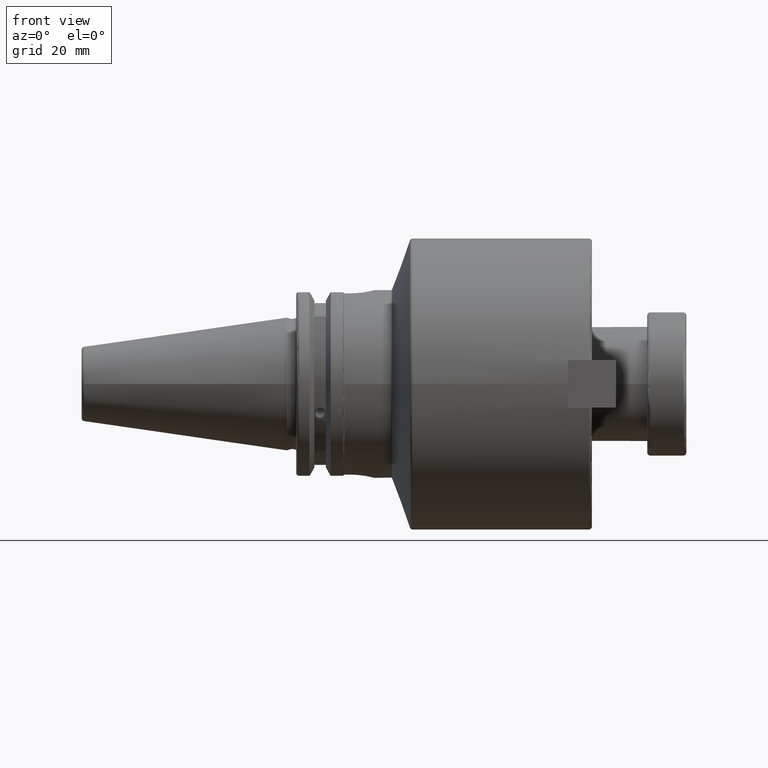
[diagram: clean part render]
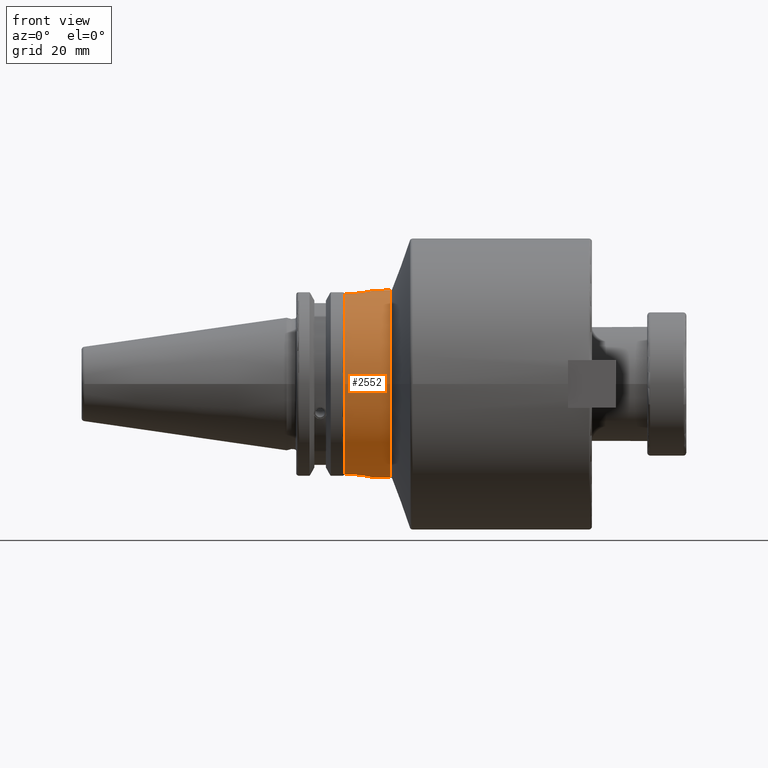
[diagram: same view with one face highlighted and labeled with its STEP entity id]
A machine part, front view. The second image highlights one B-rep face of the part: STEP entity #2552.
In plain terms, the highlighted cylindrical surface (bore or boss wall) has radius 31.25 mm, axis along (1, 0, 0).
Its self-contained STEP definition (entity closure, byte-faithful):
#121=CYLINDRICAL_SURFACE('',#2834,31.25);
#224=CIRCLE('',#2829,31.25);
#228=CIRCLE('',#2833,31.25);
#229=CIRCLE('',#2835,31.25);
#230=CIRCLE('',#2836,31.25);
#231=CIRCLE('',#2837,31.25);
#366=FACE_OUTER_BOUND('',#522,.T.);
#522=EDGE_LOOP('',(#1785,#1786,#1787,#1788,#1789,#1790,#1791,#1792,#1793,
#1794,#1795,#1796,#1797));
#699=LINE('',#4155,#862);
#700=LINE('',#4159,#863);
#701=LINE('',#4180,#864);
#702=LINE('',#4184,#865);
#703=LINE('',#4205,#866);
#862=VECTOR('',#3234,31.25);
#863=VECTOR('',#3237,10.);
#864=VECTOR('',#3238,10.);
#865=VECTOR('',#3241,10.);
#866=VECTOR('',#3242,10.);
#1009=B_SPLINE_CURVE_WITH_KNOTS('',3,(#4161,#4162,#4163,#4164,#4165,#4166,
#4167,#4168,#4169,#4170,#4171,#4172,#4173,#4174,#4175,#4176,#4177,#4178),
 .UNSPECIFIED.,.F.,.F.,(4,2,2,2,2,2,2,2,4),(-2.48058401696442,-2.1704846734033,
-1.86038532984218,-1.5503386691622,-1.24029200848221,-0.930245347802224,
-0.620198687122238,-0.310099343561118,0.),.UNSPECIFIED.);
#1010=B_SPLINE_CURVE_WITH_KNOTS('',3,(#4186,#4187,#4188,#4189,#4190,#4191,
#4192,#4193,#4194,#4195,#4196,#4197,#4198,#4199,#4200,#4201,#4202,#4203),
 .UNSPECIFIED.,.F.,.F.,(4,2,2,2,2,2,2,2,4),(-2.48058401696442,-2.1704846734033,
-1.86038532984219,-1.5503386691622,-1.24029200848221,-0.930245347802225,
-0.620198687122238,-0.310099343561118,0.),.UNSPECIFIED.);
#1079=VERTEX_POINT('',#4144);
#1080=VERTEX_POINT('',#4145);
#1083=VERTEX_POINT('',#4154);
#1084=VERTEX_POINT('',#4156);
#1085=VERTEX_POINT('',#4158);
#1086=VERTEX_POINT('',#4160);
#1087=VERTEX_POINT('',#4179);
#1088=VERTEX_POINT('',#4181);
#1089=VERTEX_POINT('',#4183);
#1090=VERTEX_POINT('',#4185);
#1091=VERTEX_POINT('',#4204);
#1352=EDGE_CURVE('',#1079,#1080,#224,.T.);
#1356=EDGE_CURVE('',#1080,#1079,#228,.T.);
#1357=EDGE_CURVE('',#1079,#1083,#699,.T.);
#1358=EDGE_CURVE('',#1084,#1083,#229,.T.);
#1359=EDGE_CURVE('',#1084,#1085,#700,.T.);
#1360=EDGE_CURVE('',#1085,#1086,#1009,.T.);
#1361=EDGE_CURVE('',#1086,#1087,#701,.T.);
#1362=EDGE_CURVE('',#1088,#1087,#230,.T.);
#1363=EDGE_CURVE('',#1088,#1089,#702,.T.);
#1364=EDGE_CURVE('',#1089,#1090,#1010,.T.);
#1365=EDGE_CURVE('',#1090,#1091,#703,.T.);
#1366=EDGE_CURVE('',#1083,#1091,#231,.T.);
#1785=ORIENTED_EDGE('',*,*,#1352,.F.);
#1786=ORIENTED_EDGE('',*,*,#1357,.T.);
#1787=ORIENTED_EDGE('',*,*,#1358,.F.);
#1788=ORIENTED_EDGE('',*,*,#1359,.T.);
#1789=ORIENTED_EDGE('',*,*,#1360,.T.);
#1790=ORIENTED_EDGE('',*,*,#1361,.T.);
#1791=ORIENTED_EDGE('',*,*,#1362,.F.);
#1792=ORIENTED_EDGE('',*,*,#1363,.T.);
#1793=ORIENTED_EDGE('',*,*,#1364,.T.);
#1794=ORIENTED_EDGE('',*,*,#1365,.T.);
#1795=ORIENTED_EDGE('',*,*,#1366,.F.);
#1796=ORIENTED_EDGE('',*,*,#1357,.F.);
#1797=ORIENTED_EDGE('',*,*,#1356,.F.);
#2552=ADVANCED_FACE('',(#366),#121,.T.);
#2829=AXIS2_PLACEMENT_3D('',#4146,#3222,#3223);
#2833=AXIS2_PLACEMENT_3D('',#4152,#3230,#3231);
#2834=AXIS2_PLACEMENT_3D('',#4153,#3232,#3233);
#2835=AXIS2_PLACEMENT_3D('',#4157,#3235,#3236);
#2836=AXIS2_PLACEMENT_3D('',#4182,#3239,#3240);
#2837=AXIS2_PLACEMENT_3D('',#4206,#3243,#3244);
#3222=DIRECTION('center_axis',(1.,0.,0.));
#3223=DIRECTION('ref_axis',(0.,-1.,1.83697019872103E-16));
#3230=DIRECTION('center_axis',(1.,0.,0.));
#3231=DIRECTION('ref_axis',(0.,-1.,1.83697019872103E-16));
#3232=DIRECTION('center_axis',(1.,0.,0.));
#3233=DIRECTION('ref_axis',(0.,1.,0.));
#3234=DIRECTION('',(-1.,0.,0.));
#3235=DIRECTION('center_axis',(-1.,0.,0.));
#3236=DIRECTION('ref_axis',(0.,-1.,4.9789962505148E-17));
#3237=DIRECTION('',(1.,0.,0.));
#3238=DIRECTION('',(-1.,0.,0.));
#3239=DIRECTION('center_axis',(-1.,0.,0.));
#3240=DIRECTION('ref_axis',(0.,1.,4.9789962505148E-17));
#3241=DIRECTION('',(1.,0.,0.));
#3242=DIRECTION('',(-1.,0.,0.));
#3243=DIRECTION('center_axis',(-1.,0.,0.));
#3244=DIRECTION('ref_axis',(0.,-1.,4.9789962505148E-17));
#4144=CARTESIAN_POINT('',(34.6498962308951,-31.25,-3.82702124733548E-15));
#4145=CARTESIAN_POINT('',(34.6498962308951,-3.82702124733548E-15,31.25));
#4146=CARTESIAN_POINT('Origin',(34.6498962308951,0.,0.));
#4152=CARTESIAN_POINT('Origin',(34.6498962308951,0.,0.));
#4153=CARTESIAN_POINT('Origin',(27.025,0.,0.));
#4154=CARTESIAN_POINT('',(19.2208203932499,-31.25,-3.82702124733548E-15));
#4155=CARTESIAN_POINT('',(27.025,-31.25,-3.82702124733548E-15));
#4156=CARTESIAN_POINT('',(19.2208203932499,-8.19,-30.157692219399));
#4157=CARTESIAN_POINT('Origin',(19.2208203932499,0.,0.));
#4158=CARTESIAN_POINT('',(20.985,-8.19,-30.157692219399));
#4159=CARTESIAN_POINT('',(27.025,-8.19,-30.157692219399));
#4160=CARTESIAN_POINT('',(20.985,8.19000000000002,-30.157692219399));
#4161=CARTESIAN_POINT('Ctrl Pts',(20.985,-8.19,-30.157692219399));
#4162=CARTESIAN_POINT('Ctrl Pts',(22.0186644785371,-8.19,-30.157692219399));
#4163=CARTESIAN_POINT('Ctrl Pts',(23.1177289031099,-7.98242969105082,-30.2163776881057));
#4164=CARTESIAN_POINT('Ctrl Pts',(25.1340267300331,-7.14515921681833,-30.4252421272864));
#4165=CARTESIAN_POINT('Ctrl Pts',(26.0517065657426,-6.51570251009308,-30.5720736251644));
#4166=CARTESIAN_POINT('Ctrl Pts',(27.5005794248904,-5.06682965094524,-30.8453094903202));
#4167=CARTESIAN_POINT('Ctrl Pts',(28.130131960371,-4.14909882987699,-30.9899080370957));
#4168=CARTESIAN_POINT('Ctrl Pts',(28.967472555723,-2.13261921574189,-31.193610827595));
#4169=CARTESIAN_POINT('Ctrl Pts',(29.175,-1.03348886893329,-31.25));
#4170=CARTESIAN_POINT('Ctrl Pts',(29.175,1.03348886893329,-31.25));
#4171=CARTESIAN_POINT('Ctrl Pts',(28.967472555723,2.13261921574189,-31.193610827595));
#4172=CARTESIAN_POINT('Ctrl Pts',(28.130131960371,4.14909882987699,-30.9899080370957));
#4173=CARTESIAN_POINT('Ctrl Pts',(27.5005794248904,5.06682965094524,-30.8453094903202));
#4174=CARTESIAN_POINT('Ctrl Pts',(26.0517065657426,6.51570251009308,-30.5720736251644));
#4175=CARTESIAN_POINT('Ctrl Pts',(25.1340267300331,7.14515921681833,-30.4252421272864));
#4176=CARTESIAN_POINT('Ctrl Pts',(23.1177289031099,7.98242969105082,-30.2163776881057));
#4177=CARTESIAN_POINT('Ctrl Pts',(22.0186644785371,8.19,-30.157692219399));
#4178=CARTESIAN_POINT('Ctrl Pts',(20.985,8.19,-30.157692219399));
#4179=CARTESIAN_POINT('',(19.2208203932499,8.19000000000002,-30.157692219399));
#4180=CARTESIAN_POINT('',(27.025,8.19000000000002,-30.157692219399));
#4181=CARTESIAN_POINT('',(19.2208203932499,8.19000000000001,30.157692219399));
#4182=CARTESIAN_POINT('Origin',(19.2208203932499,0.,0.));
#4183=CARTESIAN_POINT('',(20.985,8.19,30.157692219399));
#4184=CARTESIAN_POINT('',(27.025,8.19000000000001,30.157692219399));
#4185=CARTESIAN_POINT('',(20.985,-8.19000000000003,30.157692219399));
#4186=CARTESIAN_POINT('Ctrl Pts',(20.985,8.19000000000002,30.157692219399));
#4187=CARTESIAN_POINT('Ctrl Pts',(22.018664478537,8.19000000000002,30.157692219399));
#4188=CARTESIAN_POINT('Ctrl Pts',(23.1177289031099,7.98242969105083,30.2163776881057));
#4189=CARTESIAN_POINT('Ctrl Pts',(25.1340267300331,7.14515921681834,30.4252421272864));
#4190=CARTESIAN_POINT('Ctrl Pts',(26.0517065657425,6.5157025100931,30.5720736251644));
#4191=CARTESIAN_POINT('Ctrl Pts',(27.5005794248904,5.06682965094526,30.8453094903201));
#4192=CARTESIAN_POINT('Ctrl Pts',(28.130131960371,4.14909882987701,30.9899080370957));
#4193=CARTESIAN_POINT('Ctrl Pts',(28.9674725557229,2.13261921574191,31.193610827595));
#4194=CARTESIAN_POINT('Ctrl Pts',(29.175,1.03348886893331,31.25));
#4195=CARTESIAN_POINT('Ctrl Pts',(29.175,-1.03348886893327,31.25));
#4196=CARTESIAN_POINT('Ctrl Pts',(28.9674725557229,-2.13261921574187,31.193610827595));
#4197=CARTESIAN_POINT('Ctrl Pts',(28.130131960371,-4.14909882987697,30.9899080370957));
#4198=CARTESIAN_POINT('Ctrl Pts',(27.5005794248904,-5.06682965094522,30.8453094903202));
#4199=CARTESIAN_POINT('Ctrl Pts',(26.0517065657425,-6.51570251009306,30.5720736251644));
#4200=CARTESIAN_POINT('Ctrl Pts',(25.1340267300331,-7.14515921681831,30.4252421272864));
#4201=CARTESIAN_POINT('Ctrl Pts',(23.1177289031099,-7.9824296910508,30.2163776881057));
#4202=CARTESIAN_POINT('Ctrl Pts',(22.018664478537,-8.18999999999999,30.157692219399));
#4203=CARTESIAN_POINT('Ctrl Pts',(20.985,-8.18999999999999,30.157692219399));
#4204=CARTESIAN_POINT('',(19.2208203932499,-8.19000000000003,30.157692219399));
#4205=CARTESIAN_POINT('',(27.025,-8.19000000000003,30.157692219399));
#4206=CARTESIAN_POINT('Origin',(19.2208203932499,0.,0.));